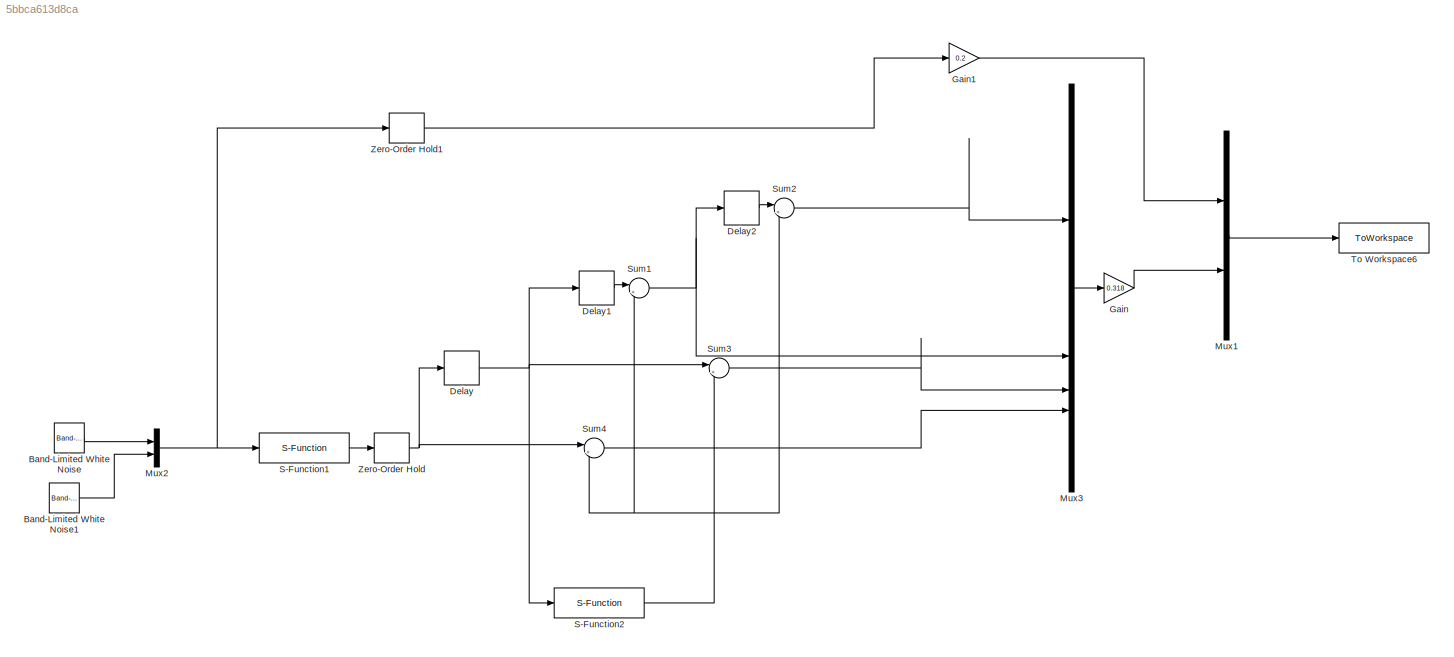
MODEL slx_5bbca613d8ca
KIND model
CONFIG AbsTol = auto
CONFIG EnableMultiTasking = off
CONFIG FixedStep = auto
CONFIG MaxStep = auto
CONFIG MinStep = auto
CONFIG RelTol = 1e-3
CONFIG SampleTimeConstraint = Unconstrained
CONFIG SolverName = VariableStepAuto
CONFIG StartTime = 0.0
CONFIG StopTime = 400
BLOCK [Reference] Band-Limited White Noise  REF=simulink/Sources/Band-Limited
White Noise
  SourceBlock = simulink/Sources/Band-Limited\nWhite Noise
  SourceType = Band-Limited White Noise.
BLOCK [Reference] Band-Limited White Noise1  REF=simulink/Sources/Band-Limited
White Noise
  SourceBlock = simulink/Sources/Band-Limited\nWhite Noise
  SourceType = Band-Limited White Noise.
BLOCK [Delay] Delay
  DelayLength = 1
  InitialCondition = 0
  InputPortMap = u0
  SampleTime = 0.01
BLOCK [Delay] Delay1
  DelayLength = 1
  InitialCondition = 0
  InputPortMap = u0
  SampleTime = 0.01
BLOCK [Delay] Delay2
  DelayLength = 1
  InitialCondition = 0
  InputPortMap = u0
  SampleTime = 0.01
BLOCK [Gain] Gain
  Gain = 0.318
BLOCK [Gain] Gain1
  Gain = 0.2
BLOCK [Mux] Mux1
  DisplayOption = bar
  Inputs = 2
BLOCK [Mux] Mux2
  DisplayOption = bar
  Inputs = 2
BLOCK [Mux] Mux3
  DisplayOption = bar
BLOCK [S-Function] S-Function1
  EnableBusSupport = off
  FunctionName = system_transfer
  SFcnIsStateOwnerBlock = off
  SFunctionDeploymentMode = off
BLOCK [S-Function] S-Function2
  EnableBusSupport = off
  FunctionName = transfer_angle
  SFcnIsStateOwnerBlock = off
  SFunctionDeploymentMode = off
BLOCK [Sum] Sum1
  Inputs = |++
BLOCK [Sum] Sum2
  Inputs = |++
BLOCK [Sum] Sum3
  Inputs = |++
BLOCK [Sum] Sum4
  Inputs = |++
BLOCK [ToWorkspace] To Workspace6
  FixptAsFi = on
  MaxDataPoints = inf
  SampleTime = 0.01
  Save2DSignal = 2-D array (concatenate along first dimension)
  VariableName = train
BLOCK [ZeroOrderHold] Zero-Order Hold
  SampleTime = 0.01
BLOCK [ZeroOrderHold] Zero-Order Hold1
  SampleTime = 0.01
LINE Band-Limited White Noise1:1 -> Mux2:2
LINE Band-Limited White Noise:1 -> Mux2:1
LINE Delay1:1 -> Sum1:1
LINE Delay2:1 -> Sum2:1
NET Delay:1 -> Delay1:1, S-Function2:1, Sum3:1
LINE Gain1:1 -> Mux1:1
LINE Gain:1 -> Mux1:2
LINE Mux1:1 -> To Workspace6:1
NET Mux2:1 -> S-Function1:1, Zero-Order Hold1:1
LINE Mux3:1 -> Gain:1
LINE S-Function1:1 -> Zero-Order Hold:1
NET S-Function2:1 -> Sum1:2, Sum2:2, Sum3:2, Sum4:2
NET Sum1:1 -> Delay2:1, Mux3:2
LINE Sum2:1 -> Mux3:1
LINE Sum3:1 -> Mux3:3
LINE Sum4:1 -> Mux3:4
LINE Zero-Order Hold1:1 -> Gain1:1
NET Zero-Order Hold:1 -> Delay:1, Sum4:1
note: NET lines group one-source signal fan-out (src -> all destinations, sorted); 1:1 wires keep LINE
